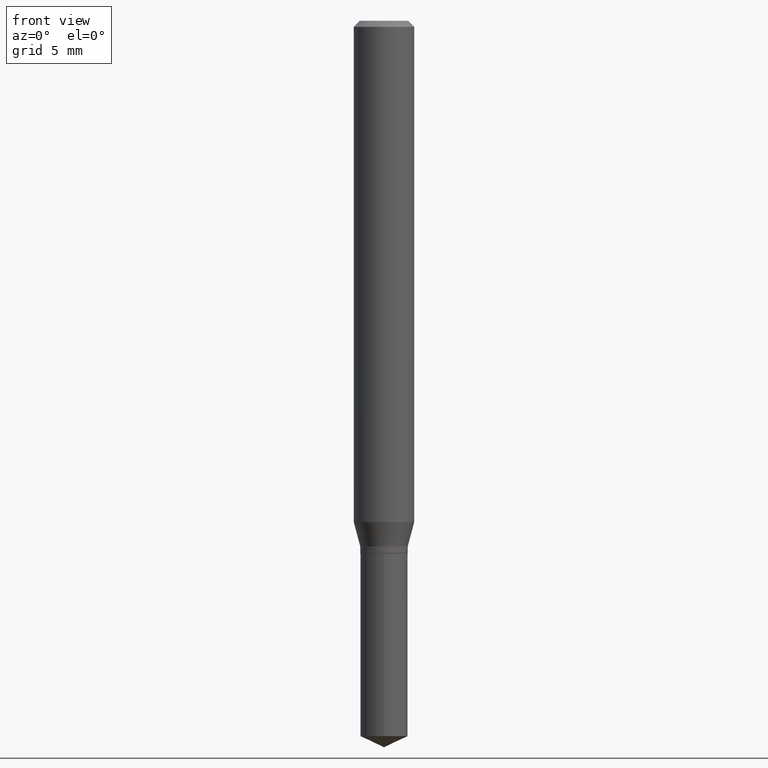
[diagram: clean part render]
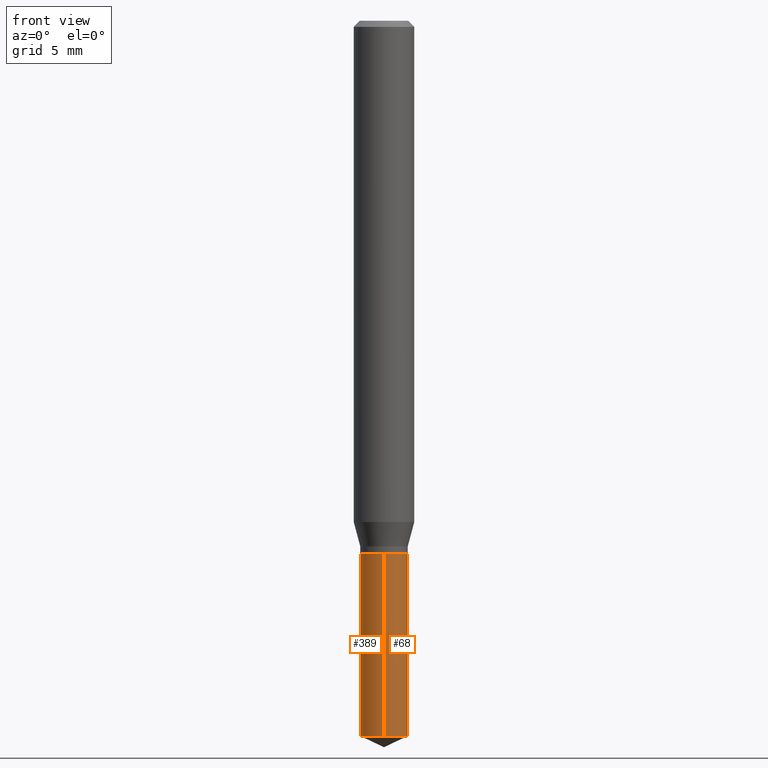
[diagram: same view with one multi-face feature highlighted, each face labeled with its STEP entity id]
A machine part, front view. The highlighted faces form ONE feature: a constant-radius fillet chain: 2 tangent blend faces with common blend radius 1.2446 mm. The faces share edges in the B-rep.
Their STEP definitions:
[1] entity #389 (Cylinder):
#8 = DIRECTION ( 'NONE',  ( -2.445399690415121530E-29, 3.491580316559632610E-15, 1.000000000000000000 ) ) ;
#9 = DIRECTION ( 'NONE',  ( -2.445399690415121530E-29, 3.491580316559632610E-15, 1.000000000000000000 ) ) ;
#12 = VECTOR ( 'NONE', #338, 39.37007874015748143 ) ;
#17 = EDGE_CURVE ( 'NONE', #97, #210, #333, .T. ) ;
#22 = EDGE_CURVE ( 'NONE', #210, #165, #37, .T. ) ;
#28 = ORIENTED_EDGE ( 'NONE', *, *, #188, .T. ) ;
#33 = ORIENTED_EDGE ( 'NONE', *, *, #22, .F. ) ;
#37 = CIRCLE ( 'NONE', #368, 0.04900000000000000189 ) ;
#63 = CIRCLE ( 'NONE', #329, 0.04900000000000000189 ) ;
#84 = CARTESIAN_POINT ( 'NONE',  ( 3.612300441428068542E-29, -5.157482217958238587E-15, -1.477150924750405325 ) ) ;
#97 = VERTEX_POINT ( 'NONE', #239 ) ;
#123 = DIRECTION ( 'NONE',  ( -6.982962677686265922E-15, -1.000000000000000000, 2.787599993534962411E-15 ) ) ;
#137 = EDGE_LOOP ( 'NONE', ( #425, #28, #431, #33 ) ) ;
#140 = DIRECTION ( 'NONE',  ( -2.445399690415121530E-29, 3.491580316559632610E-15, 1.000000000000000000 ) ) ;
#165 = VERTEX_POINT ( 'NONE', #282 ) ;
#188 = EDGE_CURVE ( 'NONE', #97, #325, #63, .T. ) ;
#198 = CARTESIAN_POINT ( 'NONE',  ( -3.421651712065909350E-16, -0.04900000000000515749, -1.477150924750405103 ) ) ;
#202 = CARTESIAN_POINT ( 'NONE',  ( 2.690015686803650369E-29, -3.840629472727460101E-15, -1.100000000000000089 ) ) ;
#210 = VERTEX_POINT ( 'NONE', #440 ) ;
#220 = CARTESIAN_POINT ( 'NONE',  ( 2.690015686803650369E-29, -3.840629472727460101E-15, -1.100000000000000089 ) ) ;
#239 = CARTESIAN_POINT ( 'NONE',  ( 3.481659405224852442E-16, 0.04899999999999485323, -1.477150924750405769 ) ) ;
#245 = VECTOR ( 'NONE', #390, 39.37007874015748143 ) ;
#282 = CARTESIAN_POINT ( 'NONE',  ( -3.421651712066001549E-16, -0.04900000000000384603, -1.099999999999999867 ) ) ;
#313 = FACE_OUTER_BOUND ( 'NONE', #137, .T. ) ;
#322 = CARTESIAN_POINT ( 'NONE',  ( -3.421651712066001549E-16, -0.04900000000000384603, -1.099999999999999867 ) ) ;
#325 = VERTEX_POINT ( 'NONE', #198 ) ;
#329 = AXIS2_PLACEMENT_3D ( 'NONE', #84, #9, #373 ) ;
#333 = LINE ( 'NONE', #477, #12 ) ;
#338 = DIRECTION ( 'NONE',  ( -2.445399690415121810E-29, 3.491580316559632610E-15, 1.000000000000000000 ) ) ;
#364 = DIRECTION ( 'NONE',  ( -6.982962677686265922E-15, -1.000000000000000000, 2.787599993534962411E-15 ) ) ;
#368 = AXIS2_PLACEMENT_3D ( 'NONE', #220, #140, #364 ) ;
#373 = DIRECTION ( 'NONE',  ( -6.982962677686265922E-15, -1.000000000000000000, 5.575199987069924823E-15 ) ) ;
#389 = ADVANCED_FACE ( 'NONE', ( #313 ), #455, .T. ) ;
#390 = DIRECTION ( 'NONE',  ( -2.445399690415121810E-29, 3.491580316559632610E-15, 1.000000000000000000 ) ) ;
#409 = EDGE_CURVE ( 'NONE', #325, #165, #424, .T. ) ;
#424 = LINE ( 'NONE', #322, #245 ) ;
#425 = ORIENTED_EDGE ( 'NONE', *, *, #17, .F. ) ;
#431 = ORIENTED_EDGE ( 'NONE', *, *, #409, .T. ) ;
#440 = CARTESIAN_POINT ( 'NONE',  ( 3.481659405224851949E-16, 0.04899999999999615080, -1.100000000000000089 ) ) ;
#455 = CYLINDRICAL_SURFACE ( 'NONE', #472, 0.04900000000000000189 ) ;
#472 = AXIS2_PLACEMENT_3D ( 'NONE', #202, #8, #123 ) ;
#477 = CARTESIAN_POINT ( 'NONE',  ( 3.481659405224759258E-16, 0.04899999999999615774, -1.100000000000000089 ) ) ;
[2] entity #68 (Cylinder):
#10 = DIRECTION ( 'NONE',  ( -6.982962677686265922E-15, -1.000000000000000000, 5.575199987069924823E-15 ) ) ;
#12 = VECTOR ( 'NONE', #338, 39.37007874015748143 ) ;
#17 = EDGE_CURVE ( 'NONE', #97, #210, #333, .T. ) ;
#42 = CYLINDRICAL_SURFACE ( 'NONE', #392, 0.04900000000000000189 ) ;
#68 = ADVANCED_FACE ( 'NONE', ( #315 ), #42, .T. ) ;
#76 = ORIENTED_EDGE ( 'NONE', *, *, #273, .T. ) ;
#94 = ORIENTED_EDGE ( 'NONE', *, *, #238, .F. ) ;
#97 = VERTEX_POINT ( 'NONE', #239 ) ;
#133 = DIRECTION ( 'NONE',  ( -6.982962677686265922E-15, -1.000000000000000000, 2.787599993534962411E-15 ) ) ;
#136 = DIRECTION ( 'NONE',  ( -2.445399690415121530E-29, 3.491580316559632610E-15, 1.000000000000000000 ) ) ;
#153 = CARTESIAN_POINT ( 'NONE',  ( 2.690015686803650369E-29, -3.840629472727460101E-15, -1.100000000000000089 ) ) ;
#159 = CARTESIAN_POINT ( 'NONE',  ( 3.612300441428068542E-29, -5.157482217958238587E-15, -1.477150924750405325 ) ) ;
#165 = VERTEX_POINT ( 'NONE', #282 ) ;
#198 = CARTESIAN_POINT ( 'NONE',  ( -3.421651712065909350E-16, -0.04900000000000515749, -1.477150924750405103 ) ) ;
#201 = DIRECTION ( 'NONE',  ( -6.982962677686265922E-15, -1.000000000000000000, 2.787599993534962411E-15 ) ) ;
#210 = VERTEX_POINT ( 'NONE', #440 ) ;
#217 = EDGE_LOOP ( 'NONE', ( #76, #357, #94, #291 ) ) ;
#238 = EDGE_CURVE ( 'NONE', #165, #210, #359, .T. ) ;
#239 = CARTESIAN_POINT ( 'NONE',  ( 3.481659405224852442E-16, 0.04899999999999485323, -1.477150924750405769 ) ) ;
#244 = AXIS2_PLACEMENT_3D ( 'NONE', #385, #136, #133 ) ;
#245 = VECTOR ( 'NONE', #390, 39.37007874015748143 ) ;
#273 = EDGE_CURVE ( 'NONE', #325, #97, #419, .T. ) ;
#282 = CARTESIAN_POINT ( 'NONE',  ( -3.421651712066001549E-16, -0.04900000000000384603, -1.099999999999999867 ) ) ;
#291 = ORIENTED_EDGE ( 'NONE', *, *, #409, .F. ) ;
#308 = DIRECTION ( 'NONE',  ( -2.445399690415121530E-29, 3.491580316559632610E-15, 1.000000000000000000 ) ) ;
#315 = FACE_OUTER_BOUND ( 'NONE', #217, .T. ) ;
#322 = CARTESIAN_POINT ( 'NONE',  ( -3.421651712066001549E-16, -0.04900000000000384603, -1.099999999999999867 ) ) ;
#325 = VERTEX_POINT ( 'NONE', #198 ) ;
#333 = LINE ( 'NONE', #477, #12 ) ;
#338 = DIRECTION ( 'NONE',  ( -2.445399690415121810E-29, 3.491580316559632610E-15, 1.000000000000000000 ) ) ;
#357 = ORIENTED_EDGE ( 'NONE', *, *, #17, .T. ) ;
#359 = CIRCLE ( 'NONE', #244, 0.04900000000000000189 ) ;
#378 = AXIS2_PLACEMENT_3D ( 'NONE', #159, #387, #10 ) ;
#385 = CARTESIAN_POINT ( 'NONE',  ( 2.690015686803650369E-29, -3.840629472727460101E-15, -1.100000000000000089 ) ) ;
#387 = DIRECTION ( 'NONE',  ( -2.445399690415121530E-29, 3.491580316559632610E-15, 1.000000000000000000 ) ) ;
#390 = DIRECTION ( 'NONE',  ( -2.445399690415121810E-29, 3.491580316559632610E-15, 1.000000000000000000 ) ) ;
#392 = AXIS2_PLACEMENT_3D ( 'NONE', #153, #308, #201 ) ;
#409 = EDGE_CURVE ( 'NONE', #325, #165, #424, .T. ) ;
#419 = CIRCLE ( 'NONE', #378, 0.04900000000000000189 ) ;
#424 = LINE ( 'NONE', #322, #245 ) ;
#440 = CARTESIAN_POINT ( 'NONE',  ( 3.481659405224851949E-16, 0.04899999999999615080, -1.100000000000000089 ) ) ;
#477 = CARTESIAN_POINT ( 'NONE',  ( 3.481659405224759258E-16, 0.04899999999999615774, -1.100000000000000089 ) ) ;